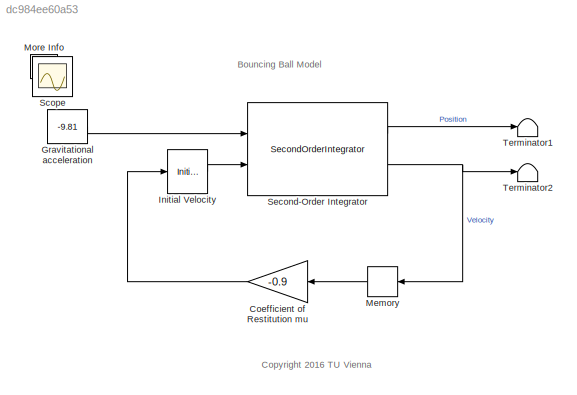
MODEL slx_dc984ee60a53
KIND model
BLOCK [Gain] Coefficient of Restitution mu
  Gain = -0.9
  OutDataTypeStr = Inherit: Inherit via internal rule
  ParamDataTypeStr = Inherit: Inherit via internal rule
  SaturateOnIntegerOverflow = off
BLOCK [Constant] Gravitational acceleration
  OutDataTypeStr = double
  Value = -9.81
BLOCK [InitialCondition] Initial Velocity 
  Value = 0
BLOCK [Memory] Memory
BLOCK [SubSystem] More Info
  OpenFcn = showdemo(bdroot(gcs))
  Ports = []
  RequestExecContextInheritance = off
BLOCK [Scope] Scope
  Floating = off
  IOType = viewer
  LimitDataPoints = off
  MaxDataPoints = 7500
  NumInputPorts = 2
  Ports = []
  SampleTime = 0
  ShowLegends = off
  TimeRange = 25
  YMax = 25~20
  YMin = 0~-30
BLOCK [SecondOrderIntegrator] Second-Order Integrator
  ICSourceDXDT = external
  ICX = 10.0
  LimitX = on
  LowerLimitX = 0.0
  Ports = [2, 2]
  ReinitDXDTwhenXreachesSaturation = on
  StateNameDXDT = 'Velocity'
  StateNameX = 'Position'
BLOCK [Terminator] Terminator1
BLOCK [Terminator] Terminator2
ANNOTATION (root): Bouncing Ball Model
ANNOTATION (root): <copyright redacted>
LINE Coefficient of Restitution mu:1 -> Initial Velocity :1
LINE Gravitational acceleration:1 -> Second-Order Integrator:1
LINE Initial Velocity :1 -> Second-Order Integrator:2
LINE Memory:1 -> Coefficient of Restitution mu:1
LINE Second-Order Integrator:1 -> Terminator1:1
NET Second-Order Integrator:2 -> Memory:1, Terminator2:1
note: NET lines group one-source signal fan-out (src -> all destinations, sorted); 1:1 wires keep LINE
